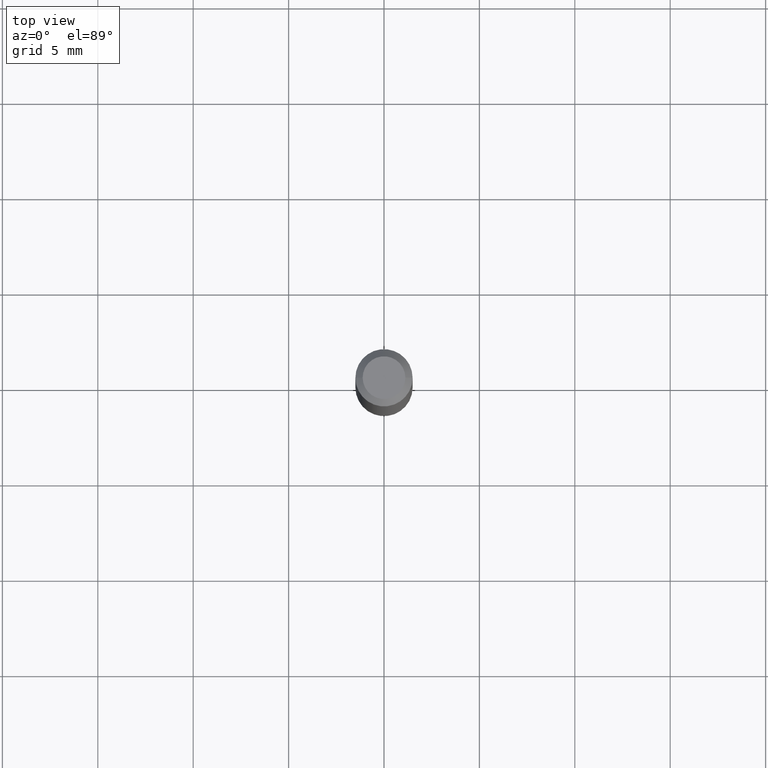
[diagram: clean part render]
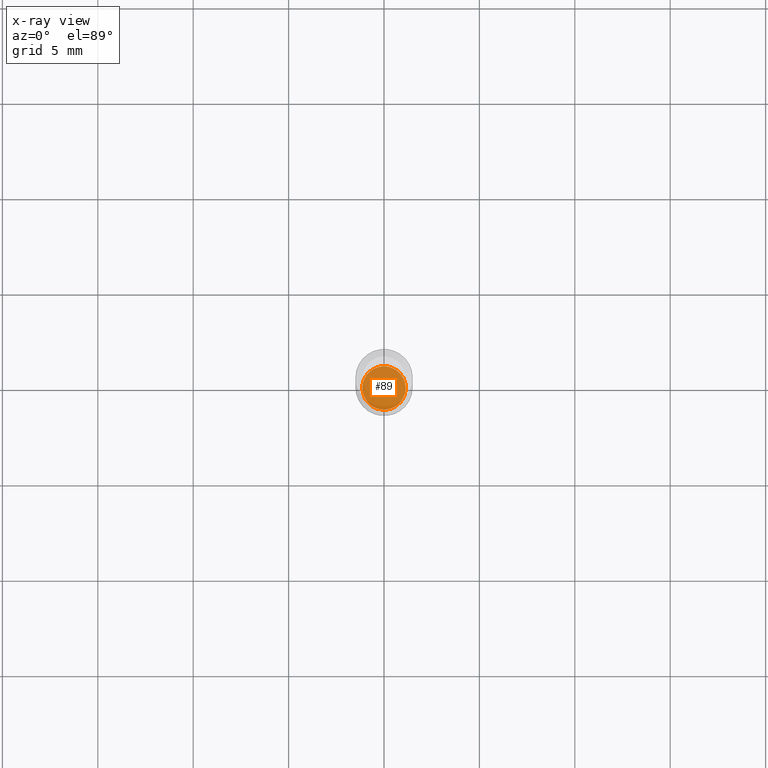
[diagram: x-ray — body ghosted, one internal face saturated and labeled with its STEP entity id]
A machine part, top view, then the same camera in x-ray: the body is ghosted and one INTERNAL B-rep face — a face not visible from any outside direction — is saturated and labeled: STEP entity #89.
In plain terms, the highlighted planar face has unit normal (-0, 0, 1).
Its self-contained STEP definition (entity closure, byte-faithful):
#51 = EDGE_CURVE ( 'NONE', #266, #84, #134, .T. ) ;
#64 = ORIENTED_EDGE ( 'NONE', *, *, #348, .F. ) ;
#84 = VERTEX_POINT ( 'NONE', #137 ) ;
#89 = ADVANCED_FACE ( 'NONE', ( #138 ), #287, .F. ) ;
#102 = CARTESIAN_POINT ( 'NONE',  ( 3.003769334637203924E-29, -4.288586528501036061E-15, -1.228300000000000169 ) ) ;
#108 = DIRECTION ( 'NONE',  ( 1.000000000000000000, -6.982962677686259611E-15, 0.000000000000000000 ) ) ;
#128 = CARTESIAN_POINT ( 'NONE',  ( 3.003769334637203924E-29, -4.288586528501036061E-15, -1.228300000000000169 ) ) ;
#134 = CIRCLE ( 'NONE', #198, 0.04479999999999999954 ) ;
#137 = CARTESIAN_POINT ( 'NONE',  ( -0.04479999999999999954, -3.967614155706400325E-15, -1.228300000000000169 ) ) ;
#138 = FACE_OUTER_BOUND ( 'NONE', #308, .T. ) ;
#153 = CARTESIAN_POINT ( 'NONE',  ( 0.04479999999999999954, -4.601423256461380545E-15, -1.228300000000000169 ) ) ;
#198 = AXIS2_PLACEMENT_3D ( 'NONE', #128, #272, #335 ) ;
#237 = CIRCLE ( 'NONE', #395, 0.04479999999999999954 ) ;
#258 = AXIS2_PLACEMENT_3D ( 'NONE', #102, #361, #353 ) ;
#266 = VERTEX_POINT ( 'NONE', #153 ) ;
#272 = DIRECTION ( 'NONE',  ( -2.445468806185136597E-29, 3.491481338843145583E-15, 1.000000000000000000 ) ) ;
#287 = PLANE ( 'NONE',  #258 ) ;
#308 = EDGE_LOOP ( 'NONE', ( #314, #64 ) ) ;
#314 = ORIENTED_EDGE ( 'NONE', *, *, #51, .F. ) ;
#335 = DIRECTION ( 'NONE',  ( 1.000000000000000000, -6.982962677686259611E-15, 0.000000000000000000 ) ) ;
#348 = EDGE_CURVE ( 'NONE', #84, #266, #237, .T. ) ;
#353 = DIRECTION ( 'NONE',  ( 1.000000000000000000, -6.982962677686265922E-15, 4.876176775795935793E-29 ) ) ;
#361 = DIRECTION ( 'NONE',  ( -2.438088387897960049E-29, 3.491481338843145188E-15, 1.000000000000000000 ) ) ;
#395 = AXIS2_PLACEMENT_3D ( 'NONE', #440, #437, #108 ) ;
#437 = DIRECTION ( 'NONE',  ( -2.445468806185136597E-29, 3.491481338843145583E-15, 1.000000000000000000 ) ) ;
#440 = CARTESIAN_POINT ( 'NONE',  ( 3.003769334637203924E-29, -4.288586528501036061E-15, -1.228300000000000169 ) ) ;